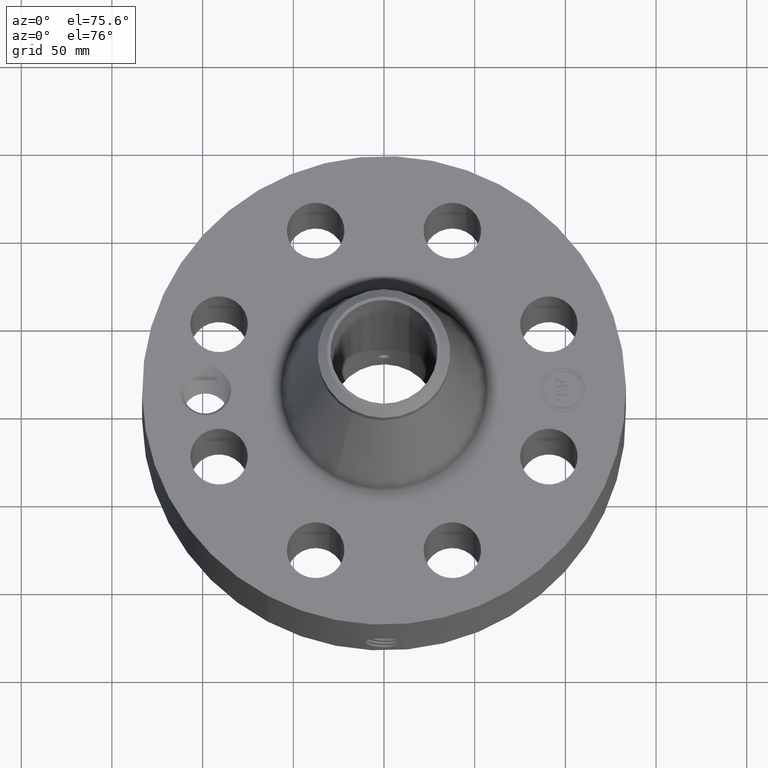
[diagram: clean part render]
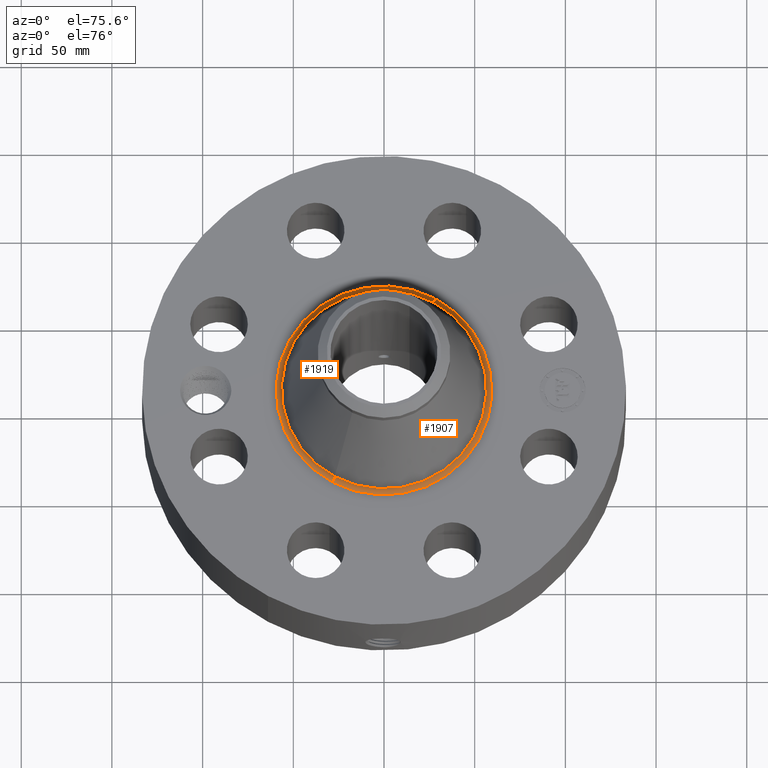
[diagram: same view with one multi-face feature highlighted, each face labeled with its STEP entity id]
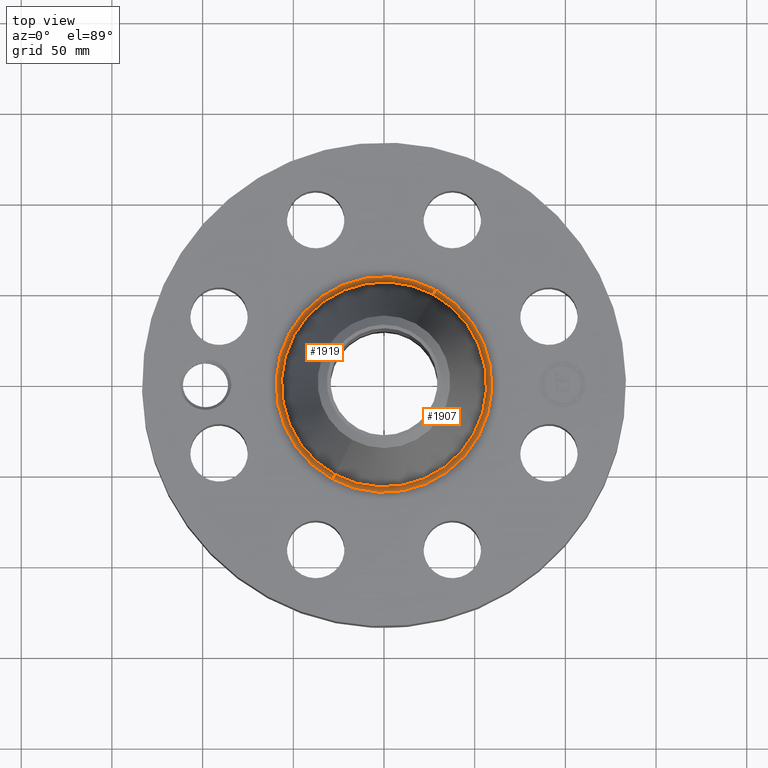
[diagram: same view with one multi-face feature highlighted, each face labeled with its STEP entity id]
A machine part, auxiliary view. The highlighted faces form ONE feature: a constant-radius fillet chain: 2 tangent blend faces with common blend radius 3.048 mm. The faces share edges in the B-rep.
A second angle (top view) of the same feature is appended — it is thin or edge-on in the first view.
Their STEP definitions:
[1] entity #1919 (Torus):
#573=AXIS2_PLACEMENT_3D('Circle Axis2P3D',#571,#572,$) ;
#1880=AXIS2_PLACEMENT_3D('Torus Axis2P3D',#1877,#1878,#1879) ;
#1884=AXIS2_PLACEMENT_3D('Circle Axis2P3D',#1882,#1883,$) ;
#1898=AXIS2_PLACEMENT_3D('Circle Axis2P3D',#1896,#1897,$) ;
#1910=AXIS2_PLACEMENT_3D('Circle Axis2P3D',#1908,#1909,$) ;
#571=CARTESIAN_POINT('Axis2P3D Location',(0.,0.,2.50000000001)) ;
#575=CARTESIAN_POINT('Vertex',(-1.12269019886,-2.05507062431,2.50000000001)) ;
#577=CARTESIAN_POINT('Vertex',(1.12269019886,2.05507062431,2.50000000001)) ;
#1877=CARTESIAN_POINT('Axis2P3D Location',(0.,0.,2.62000000001)) ;
#1882=CARTESIAN_POINT('Axis2P3D Location',(1.12269019886,2.05507062431,2.62000000001)) ;
#1886=CARTESIAN_POINT('Vertex',(1.06717279304,1.95344669461,2.58852946514)) ;
#1893=CARTESIAN_POINT('Vertex',(-1.06717279304,-1.95344669461,2.58852946514)) ;
#1896=CARTESIAN_POINT('Axis2P3D Location',(-1.12269019886,-2.05507062431,2.62000000001)) ;
#1908=CARTESIAN_POINT('Axis2P3D Location',(0.,0.,2.58852946514)) ;
#572=DIRECTION('Axis2P3D Direction',(0.,0.,-0.0393700787402)) ;
#1878=DIRECTION('Axis2P3D Direction',(0.,0.,-0.0393700787402)) ;
#1879=DIRECTION('Axis2P3D XDirection',(-0.0188750212049,-0.0345504945626,0.)) ;
#1883=DIRECTION('Axis2P3D Direction',(-0.0345504945626,0.0188750212049,0.)) ;
#1897=DIRECTION('Axis2P3D Direction',(0.0345504945626,-0.0188750212049,0.)) ;
#1909=DIRECTION('Axis2P3D Direction',(0.,0.,-0.0393700787402)) ;
#1914=ORIENTED_EDGE('',*,*,#579,.F.) ;
#1915=ORIENTED_EDGE('',*,*,#1900,.T.) ;
#1916=ORIENTED_EDGE('',*,*,#1912,.T.) ;
#1917=ORIENTED_EDGE('',*,*,#1888,.F.) ;
#1919=ADVANCED_FACE('PartBody',(#1918),#1881,.F.) ;
#574=CIRCLE('generated circle',#573,2.34174049662) ;
#1885=CIRCLE('generated circle',#1884,0.12) ;
#1899=CIRCLE('generated circle',#1898,0.12) ;
#1911=CIRCLE('generated circle',#1910,2.22594064586) ;
#1881=TOROIDAL_SURFACE('homeo Torus',#1880,2.34174049662,0.12) ;
#579=EDGE_CURVE('',#576,#578,#574,.T.) ;
#1888=EDGE_CURVE('',#578,#1887,#1885,.T.) ;
#1900=EDGE_CURVE('',#576,#1894,#1899,.T.) ;
#1912=EDGE_CURVE('',#1894,#1887,#1911,.T.) ;
#1913=EDGE_LOOP('',(#1914,#1915,#1916,#1917)) ;
#1918=FACE_OUTER_BOUND('',#1913,.T.) ;
#576=VERTEX_POINT('',#575) ;
#578=VERTEX_POINT('',#577) ;
#1887=VERTEX_POINT('',#1886) ;
#1894=VERTEX_POINT('',#1893) ;
[2] entity #1907 (Torus):
#582=AXIS2_PLACEMENT_3D('Circle Axis2P3D',#580,#581,$) ;
#1880=AXIS2_PLACEMENT_3D('Torus Axis2P3D',#1877,#1878,#1879) ;
#1884=AXIS2_PLACEMENT_3D('Circle Axis2P3D',#1882,#1883,$) ;
#1891=AXIS2_PLACEMENT_3D('Circle Axis2P3D',#1889,#1890,$) ;
#1898=AXIS2_PLACEMENT_3D('Circle Axis2P3D',#1896,#1897,$) ;
#575=CARTESIAN_POINT('Vertex',(-1.12269019886,-2.05507062431,2.50000000001)) ;
#577=CARTESIAN_POINT('Vertex',(1.12269019886,2.05507062431,2.50000000001)) ;
#580=CARTESIAN_POINT('Axis2P3D Location',(0.,0.,2.50000000001)) ;
#1877=CARTESIAN_POINT('Axis2P3D Location',(0.,0.,2.62000000001)) ;
#1882=CARTESIAN_POINT('Axis2P3D Location',(1.12269019886,2.05507062431,2.62000000001)) ;
#1886=CARTESIAN_POINT('Vertex',(1.06717279304,1.95344669461,2.58852946514)) ;
#1889=CARTESIAN_POINT('Axis2P3D Location',(0.,0.,2.58852946514)) ;
#1893=CARTESIAN_POINT('Vertex',(-1.06717279304,-1.95344669461,2.58852946514)) ;
#1896=CARTESIAN_POINT('Axis2P3D Location',(-1.12269019886,-2.05507062431,2.62000000001)) ;
#581=DIRECTION('Axis2P3D Direction',(0.,0.,-0.0393700787402)) ;
#1878=DIRECTION('Axis2P3D Direction',(0.,0.,-0.0393700787402)) ;
#1879=DIRECTION('Axis2P3D XDirection',(-0.0188750212049,-0.0345504945626,0.)) ;
#1883=DIRECTION('Axis2P3D Direction',(-0.0345504945626,0.0188750212049,0.)) ;
#1890=DIRECTION('Axis2P3D Direction',(0.,0.,-0.0393700787402)) ;
#1897=DIRECTION('Axis2P3D Direction',(0.0345504945626,-0.0188750212049,0.)) ;
#1902=ORIENTED_EDGE('',*,*,#584,.F.) ;
#1903=ORIENTED_EDGE('',*,*,#1888,.T.) ;
#1904=ORIENTED_EDGE('',*,*,#1895,.T.) ;
#1905=ORIENTED_EDGE('',*,*,#1900,.F.) ;
#1907=ADVANCED_FACE('PartBody',(#1906),#1881,.F.) ;
#583=CIRCLE('generated circle',#582,2.34174049662) ;
#1885=CIRCLE('generated circle',#1884,0.12) ;
#1892=CIRCLE('generated circle',#1891,2.22594064586) ;
#1899=CIRCLE('generated circle',#1898,0.12) ;
#1881=TOROIDAL_SURFACE('homeo Torus',#1880,2.34174049662,0.12) ;
#584=EDGE_CURVE('',#578,#576,#583,.T.) ;
#1888=EDGE_CURVE('',#578,#1887,#1885,.T.) ;
#1895=EDGE_CURVE('',#1887,#1894,#1892,.T.) ;
#1900=EDGE_CURVE('',#576,#1894,#1899,.T.) ;
#1901=EDGE_LOOP('',(#1902,#1903,#1904,#1905)) ;
#1906=FACE_OUTER_BOUND('',#1901,.T.) ;
#576=VERTEX_POINT('',#575) ;
#578=VERTEX_POINT('',#577) ;
#1887=VERTEX_POINT('',#1886) ;
#1894=VERTEX_POINT('',#1893) ;